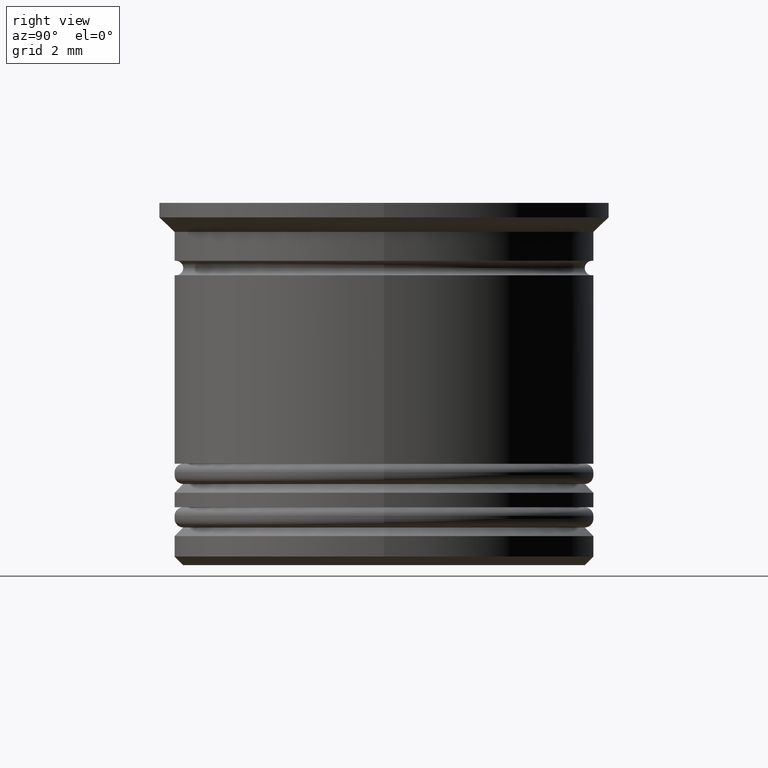
[diagram: clean part render]
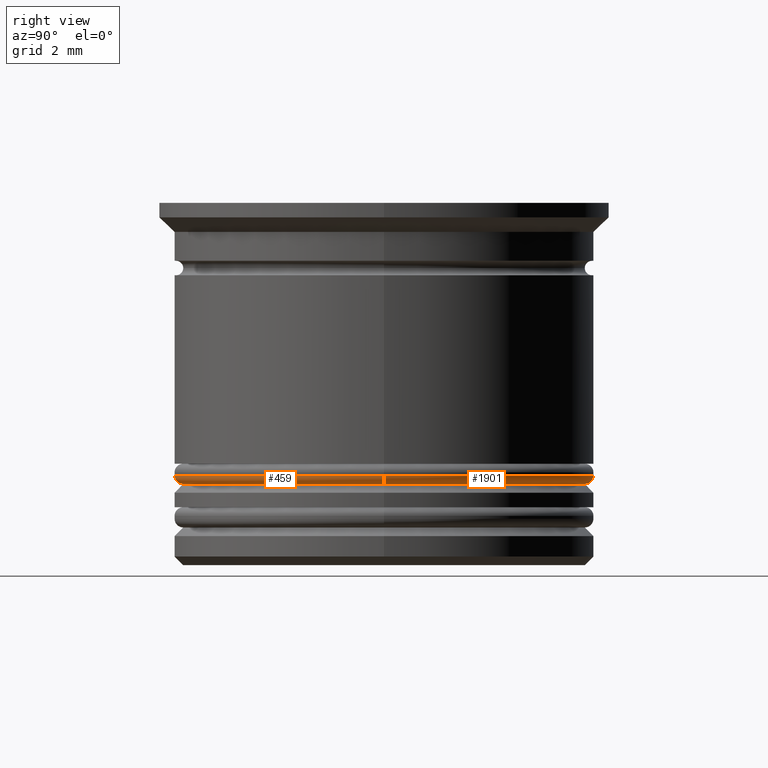
[diagram: same view with one multi-face feature highlighted, each face labeled with its STEP entity id]
A machine part, right view. The highlighted faces form ONE feature: a constant-radius fillet chain: 2 tangent blend faces with common blend radius 0.3 mm. The faces share edges in the B-rep.
Their STEP definitions:
[1] entity #1901 (Torus):
#32 = DIRECTION ( 'NONE',  ( -1.000000000000000000, 1.224646799147353207E-16, 0.000000000000000000 ) ) ;
#60 = DIRECTION ( 'NONE',  ( 0.000000000000000000, 0.000000000000000000, 1.000000000000000000 ) ) ;
#156 = DIRECTION ( 'NONE',  ( -0.000000000000000000, -0.000000000000000000, -1.000000000000000000 ) ) ;
#163 = ORIENTED_EDGE ( 'NONE', *, *, #1373, .T. ) ;
#285 = EDGE_LOOP ( 'NONE', ( #1869, #163, #1907, #817 ) ) ;
#289 = CARTESIAN_POINT ( 'NONE',  ( -6.949999999999999289, 8.694992273946207746E-16, -9.700000000000006395 ) ) ;
#295 = CARTESIAN_POINT ( 'NONE',  ( 6.949999999999999289, 0.000000000000000000, -9.700000000000006395 ) ) ;
#303 = CARTESIAN_POINT ( 'NONE',  ( 0.000000000000000000, 0.000000000000000000, -9.400000000000005684 ) ) ;
#379 = DIRECTION ( 'NONE',  ( 1.000000000000000000, 0.000000000000000000, 0.000000000000000000 ) ) ;
#517 = VERTEX_POINT ( 'NONE', #1723 ) ;
#678 = DIRECTION ( 'NONE',  ( 1.224646799147353207E-16, 1.000000000000000000, -0.000000000000000000 ) ) ;
#759 = CARTESIAN_POINT ( 'NONE',  ( -7.249999999999999112, 8.878689293818310074E-16, -9.400000000000005684 ) ) ;
#767 = CIRCLE ( 'NONE', #1689, 0.2999999999999999334 ) ;
#812 = DIRECTION ( 'NONE',  ( 0.000000000000000000, 0.000000000000000000, -1.000000000000000000 ) ) ;
#817 = ORIENTED_EDGE ( 'NONE', *, *, #1287, .F. ) ;
#947 = CIRCLE ( 'NONE', #1824, 7.249999999999999112 ) ;
#1181 = VERTEX_POINT ( 'NONE', #759 ) ;
#1206 = CIRCLE ( 'NONE', #1403, 0.2999999999999999334 ) ;
#1241 = FACE_OUTER_BOUND ( 'NONE', #285, .T. ) ;
#1249 = VERTEX_POINT ( 'NONE', #289 ) ;
#1287 = EDGE_CURVE ( 'NONE', #1549, #517, #767, .T. ) ;
#1293 = EDGE_CURVE ( 'NONE', #517, #1181, #947, .T. ) ;
#1297 = CARTESIAN_POINT ( 'NONE',  ( -6.949999999999999289, 8.511295254074104432E-16, -9.400000000000005684 ) ) ;
#1373 = EDGE_CURVE ( 'NONE', #1249, #1181, #1206, .T. ) ;
#1376 = TOROIDAL_SURFACE ( 'NONE', #1622, 6.949999999999999289, 0.2999999999999999889 ) ;
#1386 = DIRECTION ( 'NONE',  ( 0.000000000000000000, 0.000000000000000000, 1.000000000000000000 ) ) ;
#1403 = AXIS2_PLACEMENT_3D ( 'NONE', #1297, #678, #32 ) ;
#1449 = DIRECTION ( 'NONE',  ( 0.000000000000000000, -1.000000000000000000, 0.000000000000000000 ) ) ;
#1549 = VERTEX_POINT ( 'NONE', #295 ) ;
#1622 = AXIS2_PLACEMENT_3D ( 'NONE', #303, #1386, #1993 ) ;
#1689 = AXIS2_PLACEMENT_3D ( 'NONE', #1736, #1449, #812 ) ;
#1723 = CARTESIAN_POINT ( 'NONE',  ( 7.249999999999999112, 0.000000000000000000, -9.400000000000005684 ) ) ;
#1736 = CARTESIAN_POINT ( 'NONE',  ( 6.949999999999999289, 0.000000000000000000, -9.400000000000005684 ) ) ;
#1742 = CARTESIAN_POINT ( 'NONE',  ( 0.000000000000000000, 0.000000000000000000, -9.400000000000005684 ) ) ;
#1749 = EDGE_CURVE ( 'NONE', #1249, #1549, #1792, .T. ) ;
#1792 = CIRCLE ( 'NONE', #1979, 6.949999999999999289 ) ;
#1822 = DIRECTION ( 'NONE',  ( 1.000000000000000000, 0.000000000000000000, 0.000000000000000000 ) ) ;
#1824 = AXIS2_PLACEMENT_3D ( 'NONE', #1742, #60, #379 ) ;
#1869 = ORIENTED_EDGE ( 'NONE', *, *, #1749, .F. ) ;
#1901 = ADVANCED_FACE ( 'NONE', ( #1241 ), #1376, .T. ) ;
#1907 = ORIENTED_EDGE ( 'NONE', *, *, #1293, .F. ) ;
#1966 = CARTESIAN_POINT ( 'NONE',  ( 0.000000000000000000, 0.000000000000000000, -9.700000000000006395 ) ) ;
#1979 = AXIS2_PLACEMENT_3D ( 'NONE', #1966, #156, #1822 ) ;
#1993 = DIRECTION ( 'NONE',  ( 1.000000000000000000, 0.000000000000000000, 0.000000000000000000 ) ) ;
[2] entity #459 (Torus):
#20 = ORIENTED_EDGE ( 'NONE', *, *, #1287, .T. ) ;
#32 = DIRECTION ( 'NONE',  ( -1.000000000000000000, 1.224646799147353207E-16, 0.000000000000000000 ) ) ;
#40 = TOROIDAL_SURFACE ( 'NONE', #1169, 6.949999999999999289, 0.2999999999999999889 ) ;
#289 = CARTESIAN_POINT ( 'NONE',  ( -6.949999999999999289, 8.694992273946207746E-16, -9.700000000000006395 ) ) ;
#295 = CARTESIAN_POINT ( 'NONE',  ( 6.949999999999999289, 0.000000000000000000, -9.700000000000006395 ) ) ;
#296 = CARTESIAN_POINT ( 'NONE',  ( 0.000000000000000000, 0.000000000000000000, -9.400000000000005684 ) ) ;
#309 = DIRECTION ( 'NONE',  ( 0.000000000000000000, 0.000000000000000000, 1.000000000000000000 ) ) ;
#314 = CARTESIAN_POINT ( 'NONE',  ( 0.000000000000000000, 0.000000000000000000, -9.700000000000006395 ) ) ;
#437 = AXIS2_PLACEMENT_3D ( 'NONE', #314, #781, #672 ) ;
#459 = ADVANCED_FACE ( 'NONE', ( #1389 ), #40, .T. ) ;
#464 = DIRECTION ( 'NONE',  ( 1.000000000000000000, 0.000000000000000000, 0.000000000000000000 ) ) ;
#517 = VERTEX_POINT ( 'NONE', #1723 ) ;
#672 = DIRECTION ( 'NONE',  ( 1.000000000000000000, 0.000000000000000000, 0.000000000000000000 ) ) ;
#678 = DIRECTION ( 'NONE',  ( 1.224646799147353207E-16, 1.000000000000000000, -0.000000000000000000 ) ) ;
#687 = ORIENTED_EDGE ( 'NONE', *, *, #1373, .F. ) ;
#759 = CARTESIAN_POINT ( 'NONE',  ( -7.249999999999999112, 8.878689293818310074E-16, -9.400000000000005684 ) ) ;
#767 = CIRCLE ( 'NONE', #1689, 0.2999999999999999334 ) ;
#781 = DIRECTION ( 'NONE',  ( -0.000000000000000000, -0.000000000000000000, -1.000000000000000000 ) ) ;
#812 = DIRECTION ( 'NONE',  ( 0.000000000000000000, 0.000000000000000000, -1.000000000000000000 ) ) ;
#838 = ORIENTED_EDGE ( 'NONE', *, *, #971, .F. ) ;
#918 = CIRCLE ( 'NONE', #1176, 7.249999999999999112 ) ;
#971 = EDGE_CURVE ( 'NONE', #1549, #1249, #1307, .T. ) ;
#1169 = AXIS2_PLACEMENT_3D ( 'NONE', #296, #309, #1851 ) ;
#1176 = AXIS2_PLACEMENT_3D ( 'NONE', #1954, #1849, #464 ) ;
#1181 = VERTEX_POINT ( 'NONE', #759 ) ;
#1187 = ORIENTED_EDGE ( 'NONE', *, *, #1548, .F. ) ;
#1206 = CIRCLE ( 'NONE', #1403, 0.2999999999999999334 ) ;
#1249 = VERTEX_POINT ( 'NONE', #289 ) ;
#1287 = EDGE_CURVE ( 'NONE', #1549, #517, #767, .T. ) ;
#1297 = CARTESIAN_POINT ( 'NONE',  ( -6.949999999999999289, 8.511295254074104432E-16, -9.400000000000005684 ) ) ;
#1307 = CIRCLE ( 'NONE', #437, 6.949999999999999289 ) ;
#1373 = EDGE_CURVE ( 'NONE', #1249, #1181, #1206, .T. ) ;
#1389 = FACE_OUTER_BOUND ( 'NONE', #1480, .T. ) ;
#1403 = AXIS2_PLACEMENT_3D ( 'NONE', #1297, #678, #32 ) ;
#1449 = DIRECTION ( 'NONE',  ( 0.000000000000000000, -1.000000000000000000, 0.000000000000000000 ) ) ;
#1480 = EDGE_LOOP ( 'NONE', ( #687, #838, #20, #1187 ) ) ;
#1548 = EDGE_CURVE ( 'NONE', #1181, #517, #918, .T. ) ;
#1549 = VERTEX_POINT ( 'NONE', #295 ) ;
#1689 = AXIS2_PLACEMENT_3D ( 'NONE', #1736, #1449, #812 ) ;
#1723 = CARTESIAN_POINT ( 'NONE',  ( 7.249999999999999112, 0.000000000000000000, -9.400000000000005684 ) ) ;
#1736 = CARTESIAN_POINT ( 'NONE',  ( 6.949999999999999289, 0.000000000000000000, -9.400000000000005684 ) ) ;
#1849 = DIRECTION ( 'NONE',  ( 0.000000000000000000, 0.000000000000000000, 1.000000000000000000 ) ) ;
#1851 = DIRECTION ( 'NONE',  ( 1.000000000000000000, 0.000000000000000000, 0.000000000000000000 ) ) ;
#1954 = CARTESIAN_POINT ( 'NONE',  ( 0.000000000000000000, 0.000000000000000000, -9.400000000000005684 ) ) ;